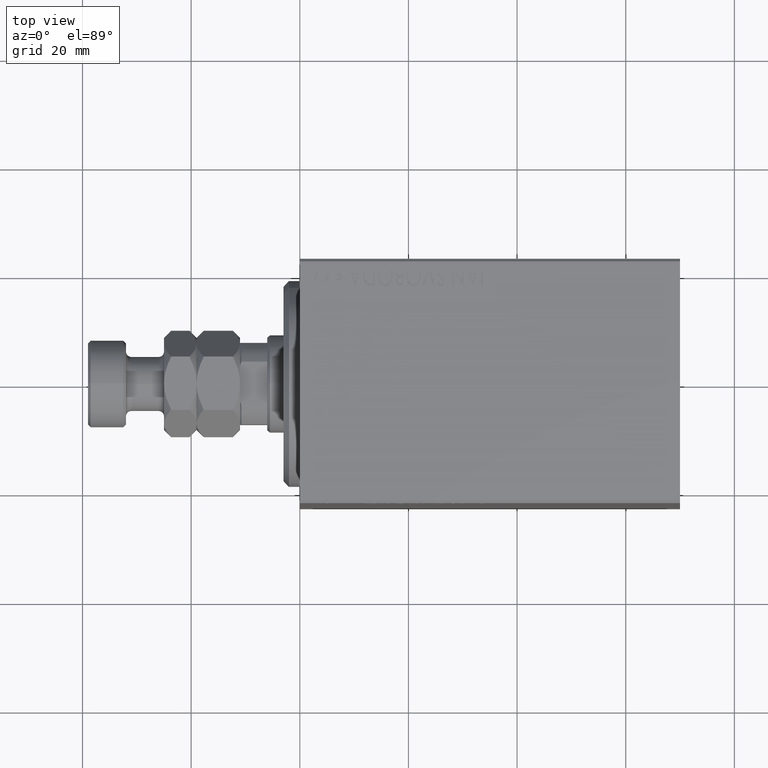
[diagram: clean part render]
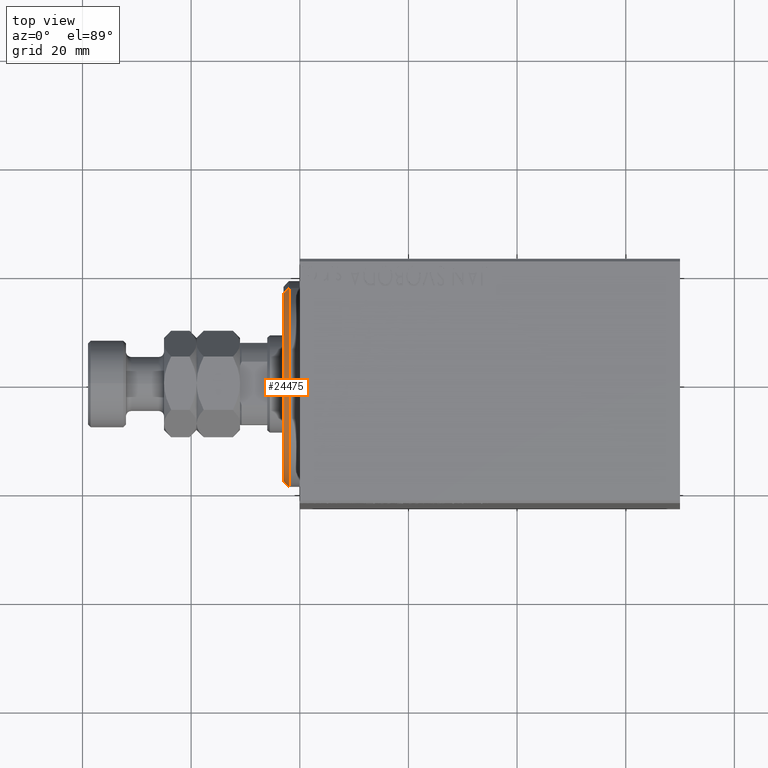
[diagram: same view with one face highlighted and labeled with its STEP entity id]
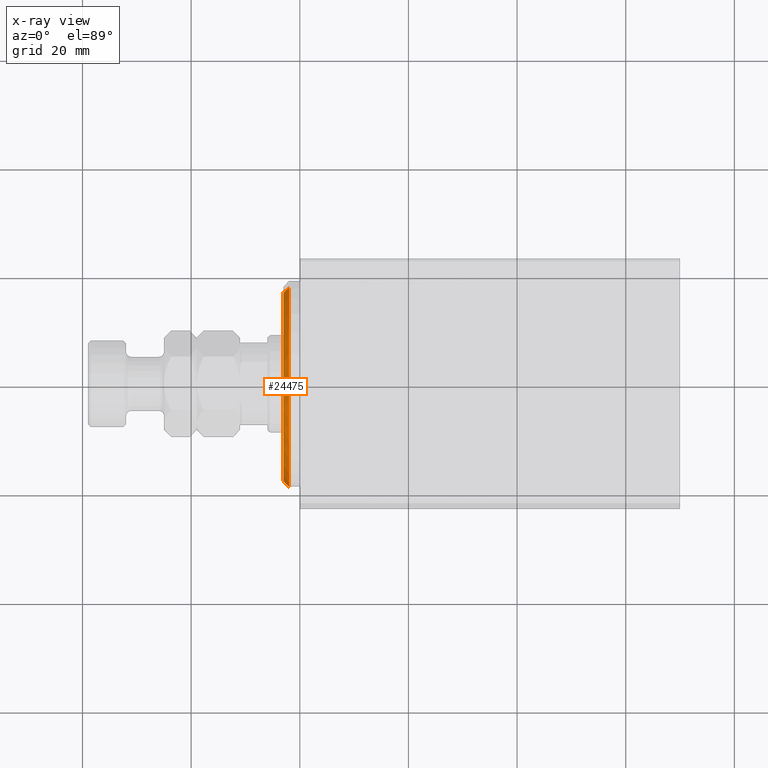
[diagram: x-ray of the same camera — body ghosted, the highlighted face saturated]
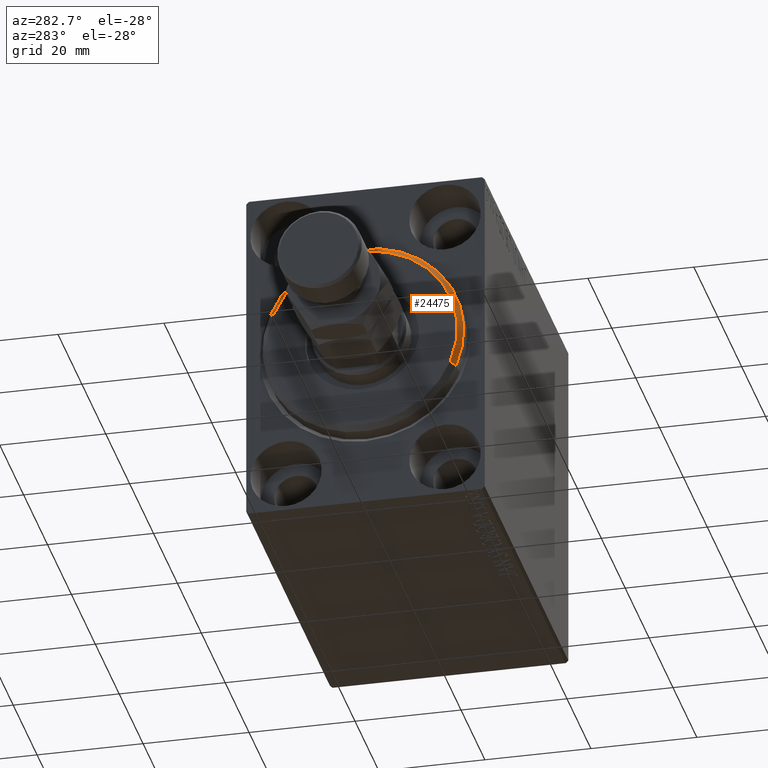
[diagram: same view with one face highlighted and labeled with its STEP entity id]
A machine part, top view. The second image highlights one B-rep face of the part: STEP entity #24475.
The next image is the same camera in x-ray: the body ghosted, the highlighted face saturated — about 0% of this face is hidden behind the body in this view.
A second angle (auxiliary view) of the same face is appended — the face is thin or edge-on in the first view.
In plain terms, the highlighted conical surface has half-angle 45 deg.
Its self-contained STEP definition (entity closure, byte-faithful):
#1668 = VECTOR ( 'NONE', #11611, 1000.000000000000000 ) ;
#1695 = ORIENTED_EDGE ( 'NONE', *, *, #12871, .F. ) ;
#2816 = CIRCLE ( 'NONE', #42463, 17.99999999999999645 ) ;
#4694 = DIRECTION ( 'NONE',  ( 0.000000000000000000, 0.000000000000000000, -1.000000000000000000 ) ) ;
#5636 = AXIS2_PLACEMENT_3D ( 'NONE', #23078, #31346, #34796 ) ;
#6726 = CARTESIAN_POINT ( 'NONE',  ( 3.000000000000000000, 0.000000000000000000, 17.99999999999999645 ) ) ;
#7021 = CARTESIAN_POINT ( 'NONE',  ( 1.999999999999992228, 2.326828918379970970E-15, -19.00000000000000000 ) ) ;
#8146 = DIRECTION ( 'NONE',  ( 1.000000000000000000, -0.000000000000000000, 0.000000000000000000 ) ) ;
#8899 = EDGE_CURVE ( 'NONE', #42562, #31501, #15747, .T. ) ;
#10020 = VERTEX_POINT ( 'NONE', #18092 ) ;
#10428 = ORIENTED_EDGE ( 'NONE', *, *, #32838, .F. ) ;
#11611 = DIRECTION ( 'NONE',  ( -0.7071067811865487940, 8.659560562354918067E-17, -0.7071067811865463515 ) ) ;
#11678 = DIRECTION ( 'NONE',  ( -1.000000000000000000, 0.000000000000000000, 0.000000000000000000 ) ) ;
#11715 = CARTESIAN_POINT ( 'NONE',  ( 3.000000000000000000, 2.265596578422603002E-15, -17.99999999999999645 ) ) ;
#12043 = LINE ( 'NONE', #26051, #1668 ) ;
#12630 = EDGE_LOOP ( 'NONE', ( #1695, #10428, #30686, #23877 ) ) ;
#12871 = EDGE_CURVE ( 'NONE', #21805, #42562, #12043, .T. ) ;
#15747 = CIRCLE ( 'NONE', #41448, 19.00000000000000000 ) ;
#16608 = DIRECTION ( 'NONE',  ( -0.7071067811865487940, 0.000000000000000000, 0.7071067811865463515 ) ) ;
#18092 = CARTESIAN_POINT ( 'NONE',  ( 3.000000000000000000, 0.000000000000000000, 17.99999999999999645 ) ) ;
#18865 = VECTOR ( 'NONE', #16608, 1000.000000000000000 ) ;
#21805 = VERTEX_POINT ( 'NONE', #11715 ) ;
#23078 = CARTESIAN_POINT ( 'NONE',  ( 3.000000000000000000, 0.000000000000000000, 0.000000000000000000 ) ) ;
#23877 = ORIENTED_EDGE ( 'NONE', *, *, #8899, .F. ) ;
#24475 = ADVANCED_FACE ( 'NONE', ( #40555 ), #25446, .T. ) ;
#25370 = CARTESIAN_POINT ( 'NONE',  ( 3.000000000000000000, 0.000000000000000000, 0.000000000000000000 ) ) ;
#25446 = CONICAL_SURFACE ( 'NONE', #5636, 17.99999999999999645, 0.7853981633974466137 ) ;
#26051 = CARTESIAN_POINT ( 'NONE',  ( 3.000000000000000000, 2.204364238465235033E-15, -17.99999999999999645 ) ) ;
#29656 = EDGE_CURVE ( 'NONE', #10020, #31501, #41435, .T. ) ;
#30247 = CARTESIAN_POINT ( 'NONE',  ( 1.999999999999992228, 0.000000000000000000, 19.00000000000000000 ) ) ;
#30686 = ORIENTED_EDGE ( 'NONE', *, *, #29656, .T. ) ;
#31346 = DIRECTION ( 'NONE',  ( -1.000000000000000000, 0.000000000000000000, 0.000000000000000000 ) ) ;
#31501 = VERTEX_POINT ( 'NONE', #30247 ) ;
#32584 = DIRECTION ( 'NONE',  ( 0.000000000000000000, 0.000000000000000000, -1.000000000000000000 ) ) ;
#32838 = EDGE_CURVE ( 'NONE', #10020, #21805, #2816, .T. ) ;
#34796 = DIRECTION ( 'NONE',  ( 0.000000000000000000, 0.000000000000000000, 1.000000000000000000 ) ) ;
#40555 = FACE_OUTER_BOUND ( 'NONE', #12630, .T. ) ;
#41435 = LINE ( 'NONE', #6726, #18865 ) ;
#41448 = AXIS2_PLACEMENT_3D ( 'NONE', #43841, #11678, #32584 ) ;
#42463 = AXIS2_PLACEMENT_3D ( 'NONE', #25370, #8146, #4694 ) ;
#42562 = VERTEX_POINT ( 'NONE', #7021 ) ;
#43841 = CARTESIAN_POINT ( 'NONE',  ( 1.999999999999992228, 0.000000000000000000, 0.000000000000000000 ) ) ;